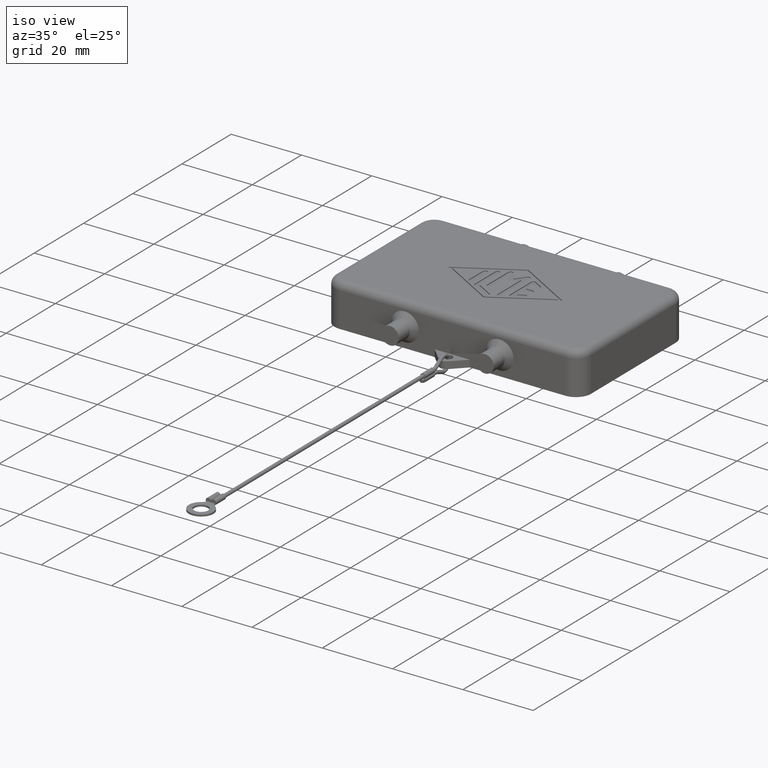
[diagram: clean part render]
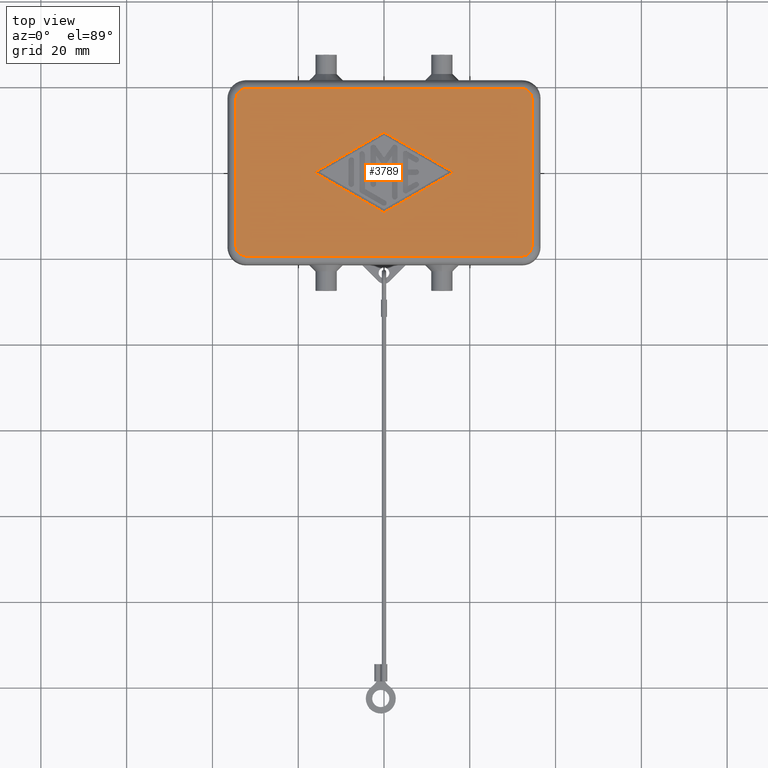
[diagram: tour spotlight — one face highlighted and labeled with its STEP entity id]
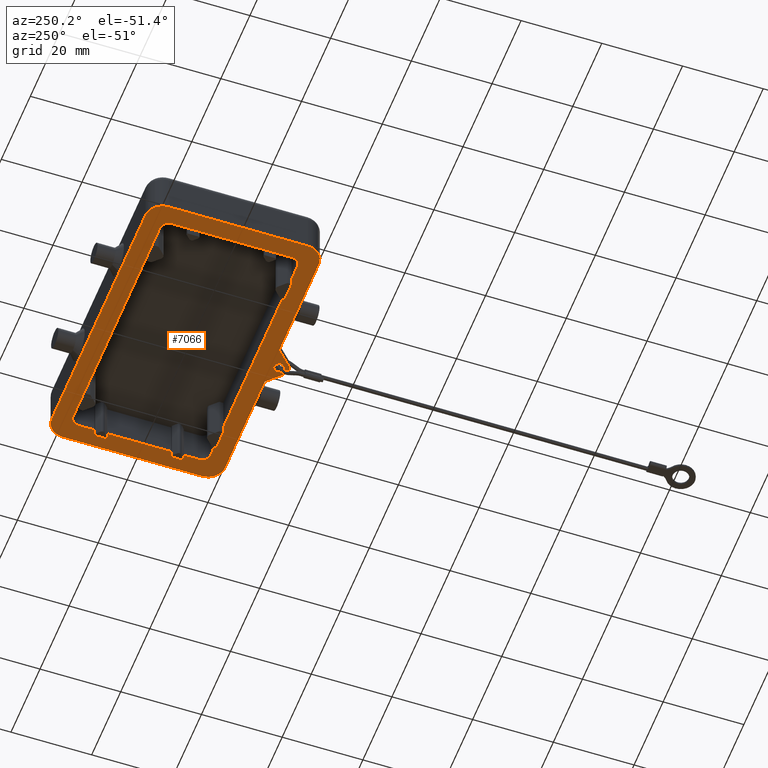
[diagram: tour spotlight — one face highlighted and labeled with its STEP entity id]
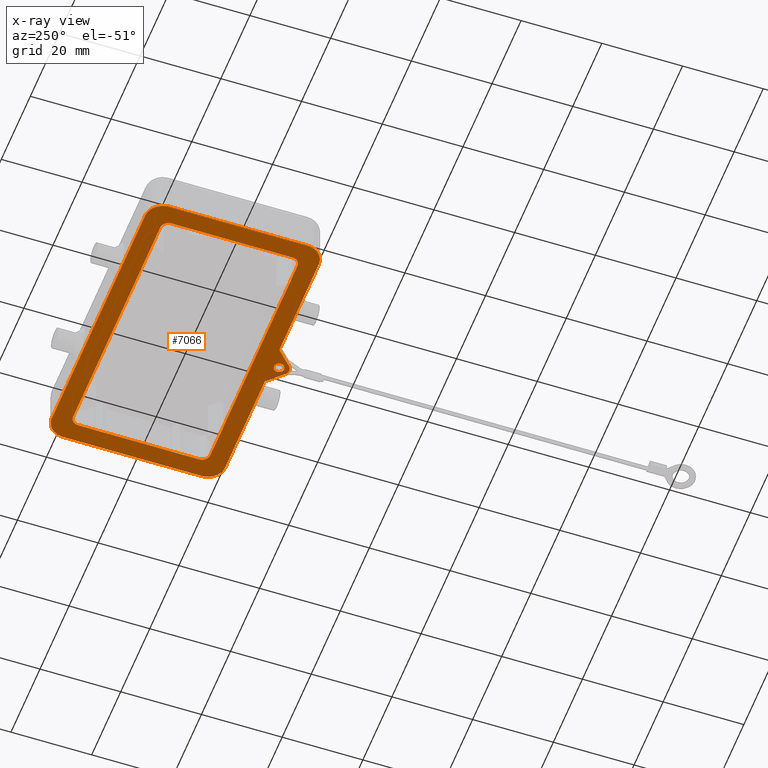
[diagram: x-ray of the same camera — body ghosted, this tour face saturated]
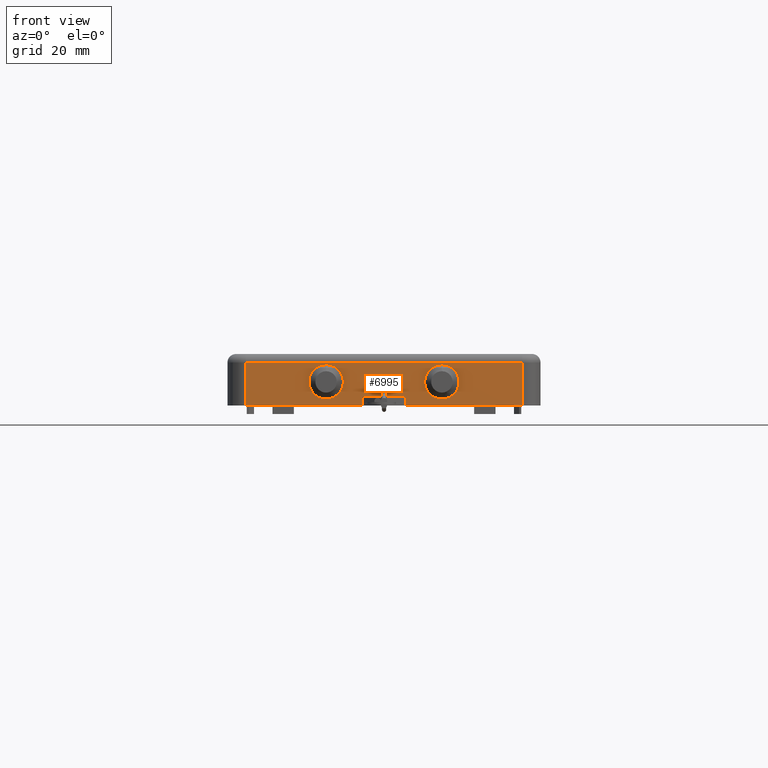
[diagram: tour spotlight — one face highlighted and labeled with its STEP entity id]
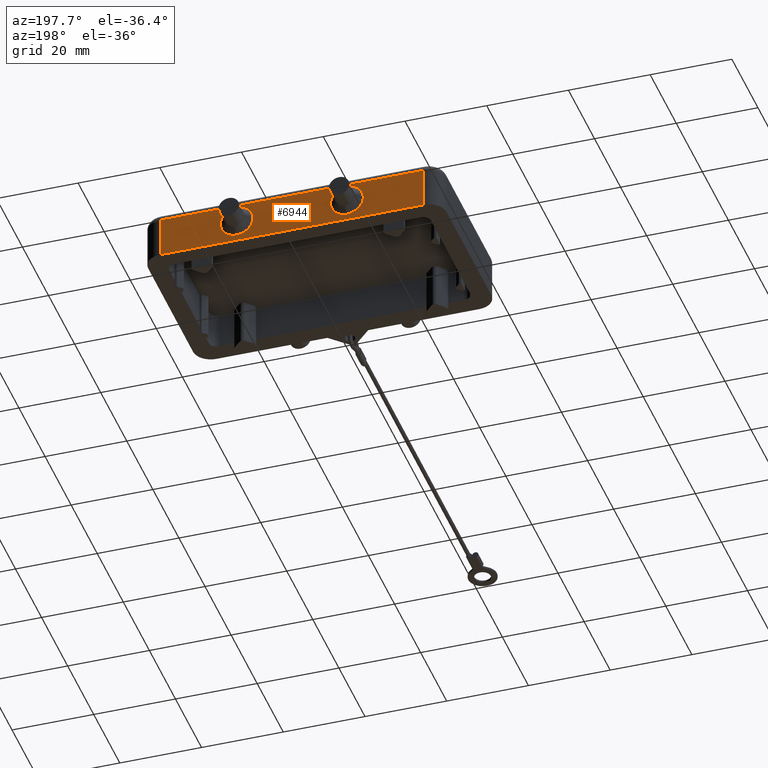
[diagram: tour spotlight — one face highlighted and labeled with its STEP entity id]
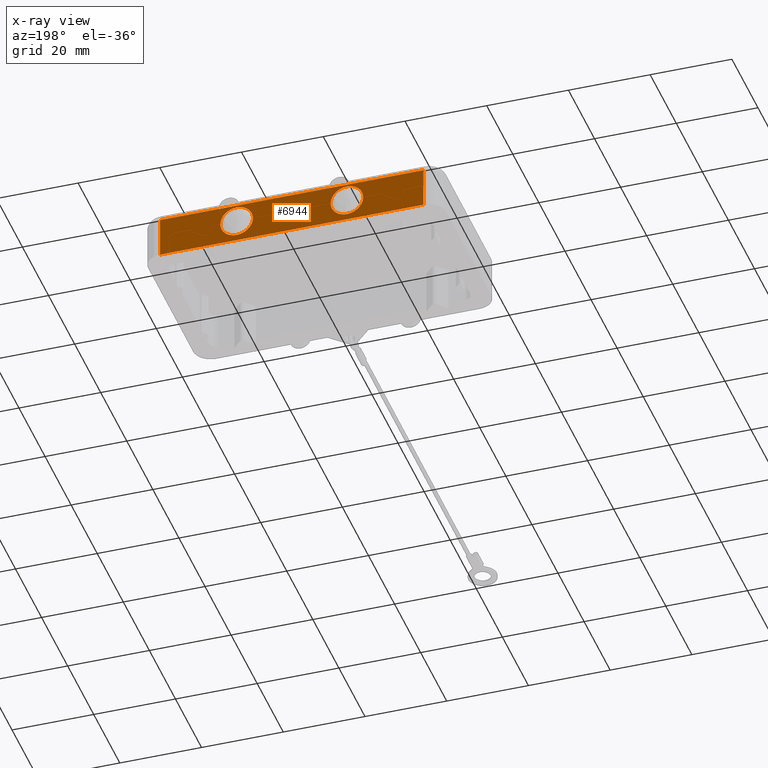
[diagram: x-ray of the same camera — body ghosted, this tour face saturated]
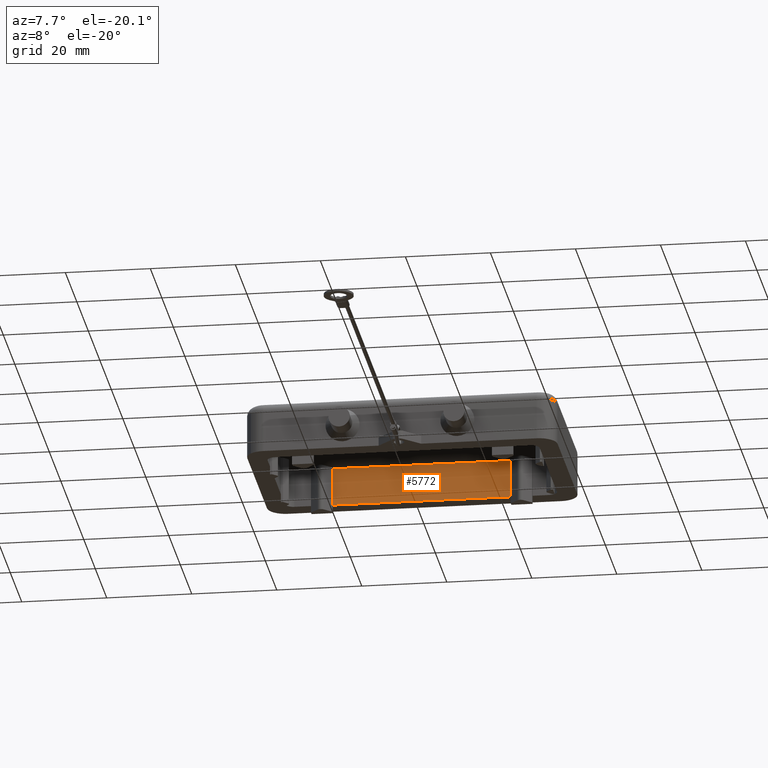
[diagram: tour spotlight — one face highlighted and labeled with its STEP entity id]
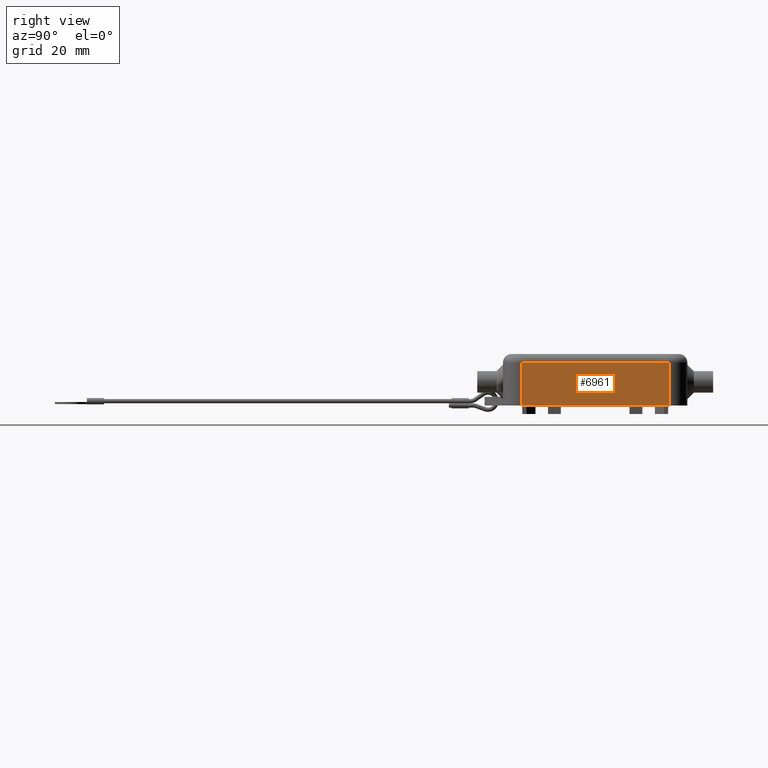
[diagram: tour spotlight — one face highlighted and labeled with its STEP entity id]
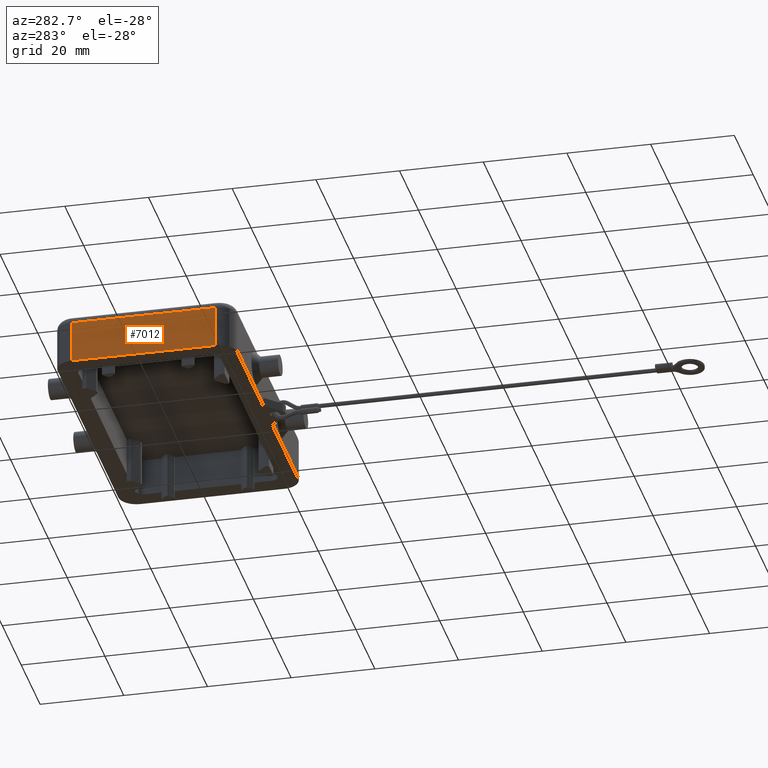
[diagram: tour spotlight — one face highlighted and labeled with its STEP entity id]
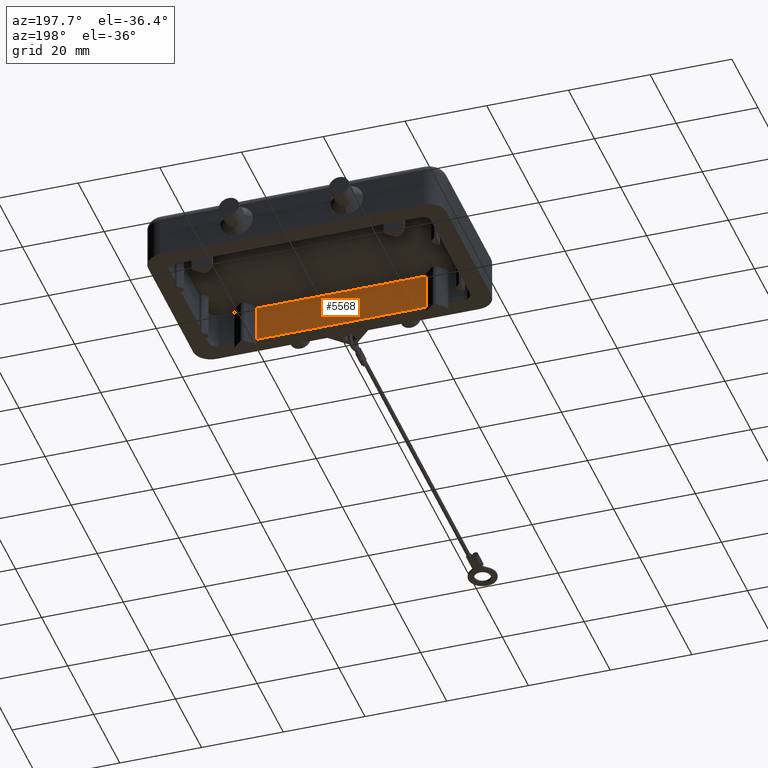
[diagram: tour spotlight — one face highlighted and labeled with its STEP entity id]
A machine part: a face-by-face anatomy tour. The part has 222 B-rep faces; the first image is the clean iso view, then the 8 largest visible faces are spotlighted one at a time (largest first), each with its STEP entity span.

Face 1 — top view, entity #3789. In plain terms, the highlighted planar face has unit normal (0, 0, 1).
Definition (entity closure, byte-faithful):
#1533=CARTESIAN_POINT('',(34.500000000000000,17.199999999999999,12.000000000000002));
#1534=VERTEX_POINT('',#1533);
#1542=CARTESIAN_POINT('',(34.500000000000000,-17.199999999999999,12.000000000000002));
#1543=VERTEX_POINT('',#1542);
#1544=CARTESIAN_POINT('',(34.500000000000000,17.199999999999999,12.000000000000002));
#1545=DIRECTION('',(0.0,-1.0,0.0));
#1546=VECTOR('',#1545,34.399999999999999);
#1547=LINE('',#1544,#1546);
#1548=EDGE_CURVE('',#1534,#1543,#1547,.T.);
#1617=CARTESIAN_POINT('',(32.200000000000003,-19.500000000000000,12.000000000000002));
#1618=VERTEX_POINT('',#1617);
#1626=CARTESIAN_POINT('',(-32.200000000000003,-19.500000000000000,12.000000000000002));
#1627=VERTEX_POINT('',#1626);
#1628=CARTESIAN_POINT('',(32.200000000000003,-19.500000000000000,12.000000000000002));
#1629=DIRECTION('',(-1.0,0.0,0.0));
#1630=VECTOR('',#1629,64.400000000000006);
#1631=LINE('',#1628,#1630);
#1632=EDGE_CURVE('',#1618,#1627,#1631,.T.);
#1701=CARTESIAN_POINT('',(-34.500000000000000,-17.199999999999999,12.000000000000002));
#1702=VERTEX_POINT('',#1701);
#1710=CARTESIAN_POINT('',(-34.500000000000000,17.199999999999999,12.000000000000002));
#1711=VERTEX_POINT('',#1710);
#1712=CARTESIAN_POINT('',(-34.500000000000000,-17.199999999999999,12.000000000000002));
#1713=DIRECTION('',(0.0,1.0,0.0));
#1714=VECTOR('',#1713,34.399999999999999);
#1715=LINE('',#1712,#1714);
#1716=EDGE_CURVE('',#1702,#1711,#1715,.T.);
#1743=CARTESIAN_POINT('',(-32.200000000000003,19.500000000000000,12.000000000000002));
#1744=VERTEX_POINT('',#1743);
#1752=CARTESIAN_POINT('',(32.200000000000003,19.500000000000000,12.000000000000002));
#1753=VERTEX_POINT('',#1752);
#1754=CARTESIAN_POINT('',(-32.200000000000003,19.500000000000000,12.000000000000002));
#1755=DIRECTION('',(1.0,0.0,0.0));
#1756=VECTOR('',#1755,64.400000000000006);
#1757=LINE('',#1754,#1756);
#1758=EDGE_CURVE('',#1744,#1753,#1757,.T.);
#2979=CARTESIAN_POINT('',(-16.249999999999996,8.660806E-017,12.000000000000002));
#2980=VERTEX_POINT('',#2979);
#2987=CARTESIAN_POINT('',(2.748489E-015,-9.375000000000002,12.000000000000002));
#2988=VERTEX_POINT('',#2987);
#2989=CARTESIAN_POINT('',(2.748489E-015,-9.375000000000002,12.000000000000002));
#2990=DIRECTION('',(-0.866185586048600,0.499722453489577,0.0));
#2991=VECTOR('',#2990,18.760413774754543);
#2992=LINE('',#2989,#2991);
#2993=EDGE_CURVE('',#2988,#2980,#2992,.T.);
#3018=CARTESIAN_POINT('',(16.250000000000004,-1.857605E-015,12.000000000000002));
#3019=VERTEX_POINT('',#3018);
#3020=CARTESIAN_POINT('',(16.250000000000004,-1.857605E-015,12.000000000000002));
#3021=DIRECTION('',(-0.866185586048600,-0.499722453489577,0.0));
#3022=VECTOR('',#3021,18.760413774754543);
#3023=LINE('',#3020,#3022);
#3024=EDGE_CURVE('',#3019,#2988,#3023,.T.);
#3049=CARTESIAN_POINT('',(-2.021297E-015,9.375000000000002,12.000000000000002));
#3050=VERTEX_POINT('',#3049);
#3051=CARTESIAN_POINT('',(-2.021297E-015,9.375000000000002,12.000000000000002));
#3052=DIRECTION('',(0.866185586048601,-0.499722453489577,0.0));
#3053=VECTOR('',#3052,18.760413774754550);
#3054=LINE('',#3051,#3053);
#3055=EDGE_CURVE('',#3050,#3019,#3054,.T.);
#3078=CARTESIAN_POINT('',(-16.249999999999996,8.660806E-017,12.000000000000002));
#3079=DIRECTION('',(0.866185586048600,0.499722453489577,0.0));
#3080=VECTOR('',#3079,18.760413774754536);
#3081=LINE('',#3078,#3080);
#3082=EDGE_CURVE('',#2980,#3050,#3081,.T.);
#3744=CARTESIAN_POINT('',(0.0,0.0,12.000000000000002));
#3745=DIRECTION('',(0.0,0.0,1.0));
#3746=DIRECTION('',(1.0,0.0,0.0));
#3747=AXIS2_PLACEMENT_3D('',#3744,#3745,#3746);
#3748=PLANE('',#3747);
#3749=CARTESIAN_POINT('',(-32.200000000000003,17.200000000000003,12.000000000000002));
#3750=DIRECTION('',(0.0,0.0,-1.000000000000000));
#3751=DIRECTION('',(-0.707106781186547,0.707106781186547,0.0));
#3752=AXIS2_PLACEMENT_3D('',#3749,#3750,#3751);
#3753=CIRCLE('',#3752,2.299999999999999);
#3754=EDGE_CURVE('',#1711,#1744,#3753,.T.);
#3755=ORIENTED_EDGE('',*,*,#3754,.F.);
#3756=ORIENTED_EDGE('',*,*,#1716,.F.);
#3757=CARTESIAN_POINT('',(-32.200000000000003,-17.199999999999999,12.000000000000002));
#3758=DIRECTION('',(0.0,0.0,-1.000000000000000));
#3759=DIRECTION('',(-0.707106781186547,-0.707106781186548,0.0));
#3760=AXIS2_PLACEMENT_3D('',#3757,#3758,#3759);
#3761=CIRCLE('',#3760,2.299999999999998);
#3762=EDGE_CURVE('',#1627,#1702,#3761,.T.);
#3763=ORIENTED_EDGE('',*,*,#3762,.F.);
#3764=ORIENTED_EDGE('',*,*,#1632,.F.);
#3765=CARTESIAN_POINT('',(32.200000000000003,-17.200000000000003,12.000000000000002));
#3766=DIRECTION('',(0.0,0.0,-1.000000000000000));
#3767=DIRECTION('',(0.707106781186547,-0.707106781186547,0.0));
#3768=AXIS2_PLACEMENT_3D('',#3765,#3766,#3767);
#3769=CIRCLE('',#3768,2.299999999999999);
#3770=EDGE_CURVE('',#1543,#1618,#3769,.T.);
#3771=ORIENTED_EDGE('',*,*,#3770,.F.);
#3772=ORIENTED_EDGE('',*,*,#1548,.F.);
#3773=CARTESIAN_POINT('',(32.200000000000003,17.199999999999999,12.000000000000002));
#3774=DIRECTION('',(0.0,0.0,-1.0));
#3775=DIRECTION('',(0.707106781186547,0.707106781186548,0.0));
#3776=AXIS2_PLACEMENT_3D('',#3773,#3774,#3775);
#3777=CIRCLE('',#3776,2.299999999999999);
#3778=EDGE_CURVE('',#1753,#1534,#3777,.T.);
#3779=ORIENTED_EDGE('',*,*,#3778,.F.);
#3780=ORIENTED_EDGE('',*,*,#1758,.F.);
#3781=EDGE_LOOP('',(#3755,#3756,#3763,#3764,#3771,#3772,#3779,#3780));
#3782=FACE_OUTER_BOUND('',#3781,.T.);
#3783=ORIENTED_EDGE('',*,*,#2993,.T.);
#3784=ORIENTED_EDGE('',*,*,#3082,.T.);
#3785=ORIENTED_EDGE('',*,*,#3055,.T.);
#3786=ORIENTED_EDGE('',*,*,#3024,.T.);
#3787=EDGE_LOOP('',(#3783,#3784,#3785,#3786));
#3788=FACE_BOUND('',#3787,.T.);
#3789=ADVANCED_FACE('',(#3782,#3788),#3748,.T.);

Face 2 — auxiliary view, entity #7066. An x-ray twin of the same camera follows (body ghosted, this face saturated) — the face is partly hidden behind the body. In plain terms, the highlighted planar face has unit normal (0, 0, 1).
Definition (entity closure, byte-faithful):
#1481=CARTESIAN_POINT('',(35.240559159102155,20.240559159102155,0.0));
#1482=VERTEX_POINT('',#1481);
#1491=CARTESIAN_POINT('',(32.200000000000003,21.500000000000000,0.0));
#1492=VERTEX_POINT('',#1491);
#1493=CARTESIAN_POINT('',(32.200000000000003,17.199999999999999,0.0));
#1494=DIRECTION('',(0.0,0.0,1.000000000000000));
#1495=DIRECTION('',(0.707106781186547,0.707106781186548,0.0));
#1496=AXIS2_PLACEMENT_3D('',#1493,#1494,#1495);
#1497=CIRCLE('',#1496,4.299999999999999);
#1498=EDGE_CURVE('',#1482,#1492,#1497,.T.);
#1565=CARTESIAN_POINT('',(35.240559159102162,-20.240559159102155,0.0));
#1566=VERTEX_POINT('',#1565);
#1575=CARTESIAN_POINT('',(36.500000000000000,-17.200000000000003,0.0));
#1576=VERTEX_POINT('',#1575);
#1577=CARTESIAN_POINT('',(32.200000000000003,-17.200000000000003,0.0));
#1578=DIRECTION('',(0.0,0.0,1.000000000000000));
#1579=DIRECTION('',(0.707106781186548,-0.707106781186547,0.0));
#1580=AXIS2_PLACEMENT_3D('',#1577,#1578,#1579);
#1581=CIRCLE('',#1580,4.299999999999999);
#1582=EDGE_CURVE('',#1566,#1576,#1581,.T.);
#1649=CARTESIAN_POINT('',(-35.240559159102155,-20.240559159102155,0.0));
#1650=VERTEX_POINT('',#1649);
#1659=CARTESIAN_POINT('',(-32.200000000000003,-21.500000000000000,0.0));
#1660=VERTEX_POINT('',#1659);
#1661=CARTESIAN_POINT('',(-32.200000000000003,-17.199999999999999,0.0));
#1662=DIRECTION('',(0.0,0.0,1.000000000000000));
#1663=DIRECTION('',(-0.707106781186547,-0.707106781186548,0.0));
#1664=AXIS2_PLACEMENT_3D('',#1661,#1662,#1663);
#1665=CIRCLE('',#1664,4.299999999999999);
#1666=EDGE_CURVE('',#1650,#1660,#1665,.T.);
#1775=CARTESIAN_POINT('',(-35.240559159102162,20.240559159102155,0.0));
#1776=VERTEX_POINT('',#1775);
#1785=CARTESIAN_POINT('',(-36.500000000000000,17.200000000000003,0.0));
#1786=VERTEX_POINT('',#1785);
#1787=CARTESIAN_POINT('',(-32.200000000000003,17.200000000000003,0.0));
#1788=DIRECTION('',(0.0,0.0,1.000000000000000));
#1789=DIRECTION('',(-0.707106781186548,0.707106781186547,0.0));
#1790=AXIS2_PLACEMENT_3D('',#1787,#1788,#1789);
#1791=CIRCLE('',#1790,4.299999999999999);
#1792=EDGE_CURVE('',#1776,#1786,#1791,.T.);
#1819=CARTESIAN_POINT('',(-1.250000000000000,-23.249999999999996,0.0));
#1820=VERTEX_POINT('',#1819);
#1836=CARTESIAN_POINT('',(1.250000000000000,-23.249999999999996,0.0));
#1837=VERTEX_POINT('',#1836);
#1844=CARTESIAN_POINT('',(0.0,-23.249999999999996,0.0));
#1845=DIRECTION('',(0.0,0.0,1.0));
#1846=DIRECTION('',(-1.0,0.0,0.0));
#1847=AXIS2_PLACEMENT_3D('',#1844,#1845,#1846);
#1848=CIRCLE('',#1847,1.250000000000000);
#1849=EDGE_CURVE('',#1820,#1837,#1848,.T.);
#3937=CARTESIAN_POINT('',(-32.000000000000007,7.999999999999996,0.0));
#3938=VERTEX_POINT('',#3937);
#3959=CARTESIAN_POINT('',(-32.0,10.999999999999996,0.0));
#3960=VERTEX_POINT('',#3959);
#3961=CARTESIAN_POINT('',(-32.0,10.999999999999996,0.0));
#3962=DIRECTION('',(0.0,-1.0,0.0));
#3963=VECTOR('',#3962,3.0);
#3964=LINE('',#3961,#3963);
#3965=EDGE_CURVE('',#3960,#3938,#3964,.T.);
#4043=CARTESIAN_POINT('',(-32.0,-7.999999999999998,0.0));
#4044=VERTEX_POINT('',#4043);
#4051=CARTESIAN_POINT('',(-32.000000000000007,7.999999999999996,0.0));
#4052=DIRECTION('',(0.0,-1.0,0.0));
#4053=VECTOR('',#4052,15.999999999999995);
#4054=LINE('',#4051,#4053);
#4055=EDGE_CURVE('',#3938,#4044,#4054,.T.);
#4066=CARTESIAN_POINT('',(-32.000000000000014,14.999999999999996,0.0));
#4067=VERTEX_POINT('',#4066);
#4068=CARTESIAN_POINT('',(-32.000000000000014,14.999999999999996,0.0));
#4069=DIRECTION('',(0.0,-1.0,0.0));
#4070=VECTOR('',#4069,4.0);
#4071=LINE('',#4068,#4070);
#4072=EDGE_CURVE('',#4067,#3960,#4071,.T.);
#4096=CARTESIAN_POINT('',(-32.0,-10.999999999999998,0.0));
#4097=VERTEX_POINT('',#4096);
#4098=CARTESIAN_POINT('',(-32.0,-7.999999999999998,0.0));
#4099=DIRECTION('',(0.0,-1.0,0.0));
#4100=VECTOR('',#4099,3.0);
#4101=LINE('',#4098,#4100);
#4102=EDGE_CURVE('',#4044,#4097,#4101,.T.);
#4335=CARTESIAN_POINT('',(-32.0,-15.0,0.0));
#4336=VERTEX_POINT('',#4335);
#4343=CARTESIAN_POINT('',(-32.0,-10.999999999999998,0.0));
#4344=DIRECTION('',(0.0,-1.0,0.0));
#4345=VECTOR('',#4344,4.000000000000002);
#4346=LINE('',#4343,#4345);
#4347=EDGE_CURVE('',#4097,#4336,#4346,.T.);
#4730=CARTESIAN_POINT('',(32.0,7.999999999999996,0.0));
#4731=VERTEX_POINT('',#4730);
#4732=CARTESIAN_POINT('',(32.0,10.999999999999996,0.0));
#4733=VERTEX_POINT('',#4732);
#4734=CARTESIAN_POINT('',(32.0,7.999999999999996,0.0));
#4735=DIRECTION('',(0.0,1.0,0.0));
#4736=VECTOR('',#4735,3.0);
#4737=LINE('',#4734,#4736);
#4738=EDGE_CURVE('',#4731,#4733,#4737,.T.);
#4911=CARTESIAN_POINT('',(32.0,-7.999999999999998,0.0));
#4912=VERTEX_POINT('',#4911);
#4913=CARTESIAN_POINT('',(32.0,-7.999999999999998,0.0));
#4914=DIRECTION('',(0.0,1.0,0.0));
#4915=VECTOR('',#4914,15.999999999999995);
#4916=LINE('',#4913,#4915);
#4917=EDGE_CURVE('',#4912,#4731,#4916,.T.);
#5022=CARTESIAN_POINT('',(32.000000000000007,-10.999999999999998,0.0));
#5023=VERTEX_POINT('',#5022);
#5046=CARTESIAN_POINT('',(32.000000000000007,-10.999999999999998,0.0));
#5047=DIRECTION('',(0.0,1.0,0.0));
#5048=VECTOR('',#5047,3.0);
#5049=LINE('',#5046,#5048);
#5050=EDGE_CURVE('',#5023,#4912,#5049,.T.);
#5109=CARTESIAN_POINT('',(31.999999999999996,15.000000000000004,0.0));
#5110=VERTEX_POINT('',#5109);
#5117=CARTESIAN_POINT('',(32.0,10.999999999999996,0.0));
#5118=DIRECTION('',(0.0,1.0,0.0));
#5119=VECTOR('',#5118,4.000000000000007);
#5120=LINE('',#5117,#5119);
#5121=EDGE_CURVE('',#4733,#5110,#5120,.T.);
#5131=CARTESIAN_POINT('',(-26.000000000000007,-16.999999999999996,0.0));
#5132=VERTEX_POINT('',#5131);
#5133=CARTESIAN_POINT('',(-21.000000000000007,-16.999999999999996,0.0));
#5134=VERTEX_POINT('',#5133);
#5135=CARTESIAN_POINT('',(-26.000000000000007,-16.999999999999996,0.0));
#5136=DIRECTION('',(1.0,0.0,0.0));
#5137=VECTOR('',#5136,5.0);
#5138=LINE('',#5135,#5137);
#5139=EDGE_CURVE('',#5132,#5134,#5138,.T.);
#5333=CARTESIAN_POINT('',(-29.999999999999996,-16.999999999999996,0.0));
#5334=VERTEX_POINT('',#5333);
#5335=CARTESIAN_POINT('',(-29.999999999999996,-16.999999999999996,0.0));
#5336=DIRECTION('',(1.0,0.0,0.0));
#5337=VECTOR('',#5336,3.999999999999989);
#5338=LINE('',#5335,#5337);
#5339=EDGE_CURVE('',#5334,#5132,#5338,.T.);
#5356=CARTESIAN_POINT('',(21.000000000000007,-16.999999999999996,0.0));
#5357=VERTEX_POINT('',#5356);
#5358=CARTESIAN_POINT('',(26.000000000000007,-16.999999999999996,0.0));
#5359=VERTEX_POINT('',#5358);
#5360=CARTESIAN_POINT('',(21.000000000000007,-16.999999999999996,0.0));
#5361=DIRECTION('',(1.0,0.0,0.0));
#5362=VECTOR('',#5361,5.0);
#5363=LINE('',#5360,#5362);
#5364=EDGE_CURVE('',#5357,#5359,#5363,.T.);
#5560=CARTESIAN_POINT('',(-21.000000000000007,-16.999999999999996,0.0));
#5561=DIRECTION('',(1.0,0.0,0.0));
#5562=VECTOR('',#5561,42.000000000000014);
#5563=LINE('',#5560,#5562);
#5564=EDGE_CURVE('',#5134,#5357,#5563,.T.);
#5574=CARTESIAN_POINT('',(-21.000000000000007,16.999999999999996,0.0));
#5575=VERTEX_POINT('',#5574);
#5576=CARTESIAN_POINT('',(-26.000000000000007,16.999999999999996,0.0));
#5577=VERTEX_POINT('',#5576);
#5578=CARTESIAN_POINT('',(-21.000000000000007,16.999999999999996,0.0));
#5579=DIRECTION('',(-1.0,0.0,0.0));
#5580=VECTOR('',#5579,5.0);
#5581=LINE('',#5578,#5580);
#5582=EDGE_CURVE('',#5575,#5577,#5581,.T.);
#5755=CARTESIAN_POINT('',(21.000000000000007,16.999999999999996,0.0));
#5756=VERTEX_POINT('',#5755);
#5757=CARTESIAN_POINT('',(21.000000000000007,16.999999999999996,0.0));
#5758=DIRECTION('',(-1.0,0.0,0.0));
#5759=VECTOR('',#5758,42.000000000000014);
#5760=LINE('',#5757,#5759);
#5761=EDGE_CURVE('',#5756,#5575,#5760,.T.);
#5778=CARTESIAN_POINT('',(26.000000000000007,16.999999999999996,0.0));
#5779=VERTEX_POINT('',#5778);
#5780=CARTESIAN_POINT('',(26.000000000000007,16.999999999999996,0.0));
#5781=DIRECTION('',(-1.0,0.0,0.0));
#5782=VECTOR('',#5781,5.0);
#5783=LINE('',#5780,#5782);
#5784=EDGE_CURVE('',#5779,#5756,#5783,.T.);
#5952=CARTESIAN_POINT('',(29.999999999999996,17.000000000000007,0.0));
#5953=VERTEX_POINT('',#5952);
#5954=CARTESIAN_POINT('',(29.999999999999996,17.000000000000007,0.0));
#5955=DIRECTION('',(-1.0,0.0,0.0));
#5956=VECTOR('',#5955,3.999999999999989);
#5957=LINE('',#5954,#5956);
#5958=EDGE_CURVE('',#5953,#5779,#5957,.T.);
#6268=CARTESIAN_POINT('',(0.0,-23.249999999999996,0.0));
#6269=DIRECTION('',(0.0,0.0,1.0));
#6270=DIRECTION('',(-1.0,0.0,0.0));
#6271=AXIS2_PLACEMENT_3D('',#6268,#6269,#6270);
#6272=CIRCLE('',#6271,1.250000000000000);
#6273=EDGE_CURVE('',#1837,#1820,#6272,.T.);
#6302=CARTESIAN_POINT('',(-1.237436867076460,-25.262563132923546,0.0));
#6303=VERTEX_POINT('',#6302);
#6310=CARTESIAN_POINT('',(1.237436867076460,-25.262563132923546,0.0));
#6311=VERTEX_POINT('',#6310);
#6312=CARTESIAN_POINT('',(0.0,-24.025126265847085,0.0));
#6313=DIRECTION('',(0.0,0.0,-1.000000000000000));
#6314=DIRECTION('',(0.707106781186546,0.707106781186549,0.0));
#6315=AXIS2_PLACEMENT_3D('',#6312,#6313,#6314);
#6316=CIRCLE('',#6315,1.750000000000012);
#6317=EDGE_CURVE('',#6311,#6303,#6316,.T.);
#6341=CARTESIAN_POINT('',(-5.0,-21.500000000000000,0.0));
#6342=VERTEX_POINT('',#6341);
#6349=CARTESIAN_POINT('',(-1.237436867076460,-25.262563132923546,0.0));
#6350=DIRECTION('',(-0.707106781186547,0.707106781186548,0.0));
#6351=VECTOR('',#6350,5.321067811865476);
#6352=LINE('',#6349,#6351);
#6353=EDGE_CURVE('',#6303,#6342,#6352,.T.);
#6373=CARTESIAN_POINT('',(5.0,-21.500000000000000,0.0));
#6374=VERTEX_POINT('',#6373);
#6375=CARTESIAN_POINT('',(5.0,-21.500000000000000,0.0));
#6376=DIRECTION('',(-0.707106781186547,-0.707106781186548,0.0));
#6377=VECTOR('',#6376,5.321067811865476);
#6378=LINE('',#6375,#6377);
#6379=EDGE_CURVE('',#6374,#6311,#6378,.T.);
#6418=CARTESIAN_POINT('',(-30.000000000000004,16.999999999999993,0.0));
#6419=VERTEX_POINT('',#6418);
#6426=CARTESIAN_POINT('',(-26.000000000000007,16.999999999999996,0.0));
#6427=DIRECTION('',(-1.0,0.0,0.0));
#6428=VECTOR('',#6427,3.999999999999996);
#6429=LINE('',#6426,#6428);
#6430=EDGE_CURVE('',#5577,#6419,#6429,.T.);
#6442=CARTESIAN_POINT('',(29.999999999999996,15.000000000000004,0.0));
#6443=DIRECTION('',(0.0,0.0,1.0));
#6444=DIRECTION('',(1.0,0.0,0.0));
#6445=AXIS2_PLACEMENT_3D('',#6442,#6443,#6444);
#6446=CIRCLE('',#6445,2.000000000000002);
#6447=EDGE_CURVE('',#5110,#5953,#6446,.T.);
#6459=CARTESIAN_POINT('',(32.000000000000007,-15.0,0.0));
#6460=VERTEX_POINT('',#6459);
#6461=CARTESIAN_POINT('',(32.000000000000007,-15.0,0.0));
#6462=DIRECTION('',(0.0,1.0,0.0));
#6463=VECTOR('',#6462,4.000000000000002);
#6464=LINE('',#6461,#6463);
#6465=EDGE_CURVE('',#6460,#5023,#6464,.T.);
#6484=CARTESIAN_POINT('',(30.000000000000004,-16.999999999999996,0.0));
#6485=VERTEX_POINT('',#6484);
#6486=CARTESIAN_POINT('',(30.000000000000004,-15.0,0.0));
#6487=DIRECTION('',(0.0,0.0,1.0));
#6488=DIRECTION('',(0.0,-1.0,0.0));
#6489=AXIS2_PLACEMENT_3D('',#6486,#6487,#6488);
#6490=CIRCLE('',#6489,2.000000000000004);
#6491=EDGE_CURVE('',#6485,#6460,#6490,.T.);
#6510=CARTESIAN_POINT('',(26.000000000000007,-16.999999999999996,0.0));
#6511=DIRECTION('',(1.0,0.0,0.0));
#6512=VECTOR('',#6511,3.999999999999996);
#6513=LINE('',#6510,#6512);
#6514=EDGE_CURVE('',#5359,#6485,#6513,.T.);
#6526=CARTESIAN_POINT('',(-29.999999999999996,-15.0,0.0));
#6527=DIRECTION('',(0.0,0.0,1.0));
#6528=DIRECTION('',(-1.0,0.0,0.0));
#6529=AXIS2_PLACEMENT_3D('',#6526,#6527,#6528);
#6530=CIRCLE('',#6529,2.000000000000001);
#6531=EDGE_CURVE('',#4336,#5334,#6530,.T.);
#6544=CARTESIAN_POINT('',(-30.000000000000004,14.999999999999996,0.0));
#6545=DIRECTION('',(0.0,0.0,1.0));
#6546=DIRECTION('',(0.0,1.0,0.0));
#6547=AXIS2_PLACEMENT_3D('',#6544,#6545,#6546);
#6548=CIRCLE('',#6547,2.000000000000002);
#6549=EDGE_CURVE('',#6419,#4067,#6548,.T.);
#6597=CARTESIAN_POINT('',(-32.200000000000003,21.500000000000000,0.0));
#6598=VERTEX_POINT('',#6597);
#6605=CARTESIAN_POINT('',(-32.200000000000003,17.200000000000003,0.0));
#6606=DIRECTION('',(0.0,0.0,1.000000000000000));
#6607=DIRECTION('',(-0.707106781186548,0.707106781186547,0.0));
#6608=AXIS2_PLACEMENT_3D('',#6605,#6606,#6607);
#6609=CIRCLE('',#6608,4.299999999999999);
#6610=EDGE_CURVE('',#6598,#1776,#6609,.T.);
#6754=CARTESIAN_POINT('',(-36.500000000000000,-17.199999999999999,0.0));
#6755=VERTEX_POINT('',#6754);
#6762=CARTESIAN_POINT('',(-32.200000000000003,-17.199999999999999,0.0));
#6763=DIRECTION('',(0.0,0.0,1.000000000000000));
#6764=DIRECTION('',(-0.707106781186547,-0.707106781186548,0.0));
#6765=AXIS2_PLACEMENT_3D('',#6762,#6763,#6764);
#6766=CIRCLE('',#6765,4.299999999999999);
#6767=EDGE_CURVE('',#6755,#1650,#6766,.T.);
#6831=CARTESIAN_POINT('',(32.200000000000003,-21.500000000000000,0.0));
#6832=VERTEX_POINT('',#6831);
#6839=CARTESIAN_POINT('',(32.200000000000003,-17.200000000000003,0.0));
#6840=DIRECTION('',(0.0,0.0,1.000000000000000));
#6841=DIRECTION('',(0.707106781186548,-0.707106781186547,0.0));
#6842=AXIS2_PLACEMENT_3D('',#6839,#6840,#6841);
#6843=CIRCLE('',#6842,4.299999999999999);
#6844=EDGE_CURVE('',#6832,#1566,#6843,.T.);
#6902=CARTESIAN_POINT('',(36.500000000000000,17.199999999999999,0.0));
#6903=VERTEX_POINT('',#6902);
#6910=CARTESIAN_POINT('',(32.200000000000003,17.199999999999999,0.0));
#6911=DIRECTION('',(0.0,0.0,1.000000000000000));
#6912=DIRECTION('',(0.707106781186547,0.707106781186548,0.0));
#6913=AXIS2_PLACEMENT_3D('',#6910,#6911,#6912);
#6914=CIRCLE('',#6913,4.299999999999999);
#6915=EDGE_CURVE('',#6903,#1482,#6914,.T.);
#6928=CARTESIAN_POINT('',(-32.200000000000003,21.500000000000000,0.0));
#6929=DIRECTION('',(1.0,0.0,0.0));
#6930=VECTOR('',#6929,64.400000000000006);
#6931=LINE('',#6928,#6930);
#6932=EDGE_CURVE('',#6598,#1492,#6931,.T.);
#6951=CARTESIAN_POINT('',(36.500000000000000,17.199999999999999,0.0));
#6952=DIRECTION('',(0.0,-1.0,0.0));
#6953=VECTOR('',#6952,34.400000000000006);
#6954=LINE('',#6951,#6953);
#6955=EDGE_CURVE('',#6903,#1576,#6954,.T.);
#6968=CARTESIAN_POINT('',(32.200000000000003,-21.500000000000000,0.0));
#6969=DIRECTION('',(-1.0,0.0,0.0));
#6970=VECTOR('',#6969,27.200000000000003);
#6971=LINE('',#6968,#6970);
#6972=EDGE_CURVE('',#6832,#6374,#6971,.T.);
#6977=CARTESIAN_POINT('',(-5.0,-21.500000000000000,0.0));
#6978=DIRECTION('',(-1.0,0.0,0.0));
#6979=VECTOR('',#6978,27.200000000000003);
#6980=LINE('',#6977,#6979);
#6981=EDGE_CURVE('',#6342,#1660,#6980,.T.);
#7002=CARTESIAN_POINT('',(-36.500000000000000,-17.199999999999999,0.0));
#7003=DIRECTION('',(0.0,1.0,0.0));
#7004=VECTOR('',#7003,34.400000000000006);
#7005=LINE('',#7002,#7004);
#7006=EDGE_CURVE('',#6755,#1786,#7005,.T.);
#7013=CARTESIAN_POINT('',(0.0,0.0,0.0));
#7014=DIRECTION('',(0.0,0.0,1.0));
#7015=DIRECTION('',(1.0,0.0,0.0));
#7016=AXIS2_PLACEMENT_3D('',#7013,#7014,#7015);
#7017=PLANE('',#7016);
#7018=ORIENTED_EDGE('',*,*,#6610,.F.);
#7019=ORIENTED_EDGE('',*,*,#6932,.T.);
#7020=ORIENTED_EDGE('',*,*,#1498,.F.);
#7021=ORIENTED_EDGE('',*,*,#6915,.F.);
#7022=ORIENTED_EDGE('',*,*,#6955,.T.);
#7023=ORIENTED_EDGE('',*,*,#1582,.F.);
#7024=ORIENTED_EDGE('',*,*,#6844,.F.);
#7025=ORIENTED_EDGE('',*,*,#6972,.T.);
#7026=ORIENTED_EDGE('',*,*,#6379,.T.);
#7027=ORIENTED_EDGE('',*,*,#6317,.T.);
#7028=ORIENTED_EDGE('',*,*,#6353,.T.);
#7029=ORIENTED_EDGE('',*,*,#6981,.T.);
#7030=ORIENTED_EDGE('',*,*,#1666,.F.);
#7031=ORIENTED_EDGE('',*,*,#6767,.F.);
#7032=ORIENTED_EDGE('',*,*,#7006,.T.);
#7033=ORIENTED_EDGE('',*,*,#1792,.F.);
#7034=EDGE_LOOP('',(#7018,#7019,#7020,#7021,#7022,#7023,#7024,#7025,#7026,#7027,#7028,#7029,#7030,#7031,#7032,#7033));
#7035=FACE_OUTER_BOUND('',#7034,.T.);
#7036=ORIENTED_EDGE('',*,*,#6273,.T.);
#7037=ORIENTED_EDGE('',*,*,#1849,.T.);
#7038=EDGE_LOOP('',(#7036,#7037));
#7039=FACE_BOUND('',#7038,.T.);
#7040=ORIENTED_EDGE('',*,*,#5958,.T.);
#7041=ORIENTED_EDGE('',*,*,#5784,.T.);
#7042=ORIENTED_EDGE('',*,*,#5761,.T.);
#7043=ORIENTED_EDGE('',*,*,#5582,.T.);
#7044=ORIENTED_EDGE('',*,*,#6430,.T.);
#7045=ORIENTED_EDGE('',*,*,#6549,.T.);
#7046=ORIENTED_EDGE('',*,*,#4072,.T.);
#7047=ORIENTED_EDGE('',*,*,#3965,.T.);
#7048=ORIENTED_EDGE('',*,*,#4055,.T.);
#7049=ORIENTED_EDGE('',*,*,#4102,.T.);
#7050=ORIENTED_EDGE('',*,*,#4347,.T.);
#7051=ORIENTED_EDGE('',*,*,#6531,.T.);
#7052=ORIENTED_EDGE('',*,*,#5339,.T.);
#7053=ORIENTED_EDGE('',*,*,#5139,.T.);
#7054=ORIENTED_EDGE('',*,*,#5564,.T.);
#7055=ORIENTED_EDGE('',*,*,#5364,.T.);
#7056=ORIENTED_EDGE('',*,*,#6514,.T.);
#7057=ORIENTED_EDGE('',*,*,#6491,.T.);
#7058=ORIENTED_EDGE('',*,*,#6465,.T.);
#7059=ORIENTED_EDGE('',*,*,#5050,.T.);
#7060=ORIENTED_EDGE('',*,*,#4917,.T.);
#7061=ORIENTED_EDGE('',*,*,#4738,.T.);
#7062=ORIENTED_EDGE('',*,*,#5121,.T.);
#7063=ORIENTED_EDGE('',*,*,#6447,.T.);
#7064=EDGE_LOOP('',(#7040,#7041,#7042,#7043,#7044,#7045,#7046,#7047,#7048,#7049,#7050,#7051,#7052,#7053,#7054,#7055,#7056,#7057,#7058,#7059,#7060,#7061,#7062,#7063));
#7065=FACE_BOUND('',#7064,.T.);
#7066=ADVANCED_FACE('',(#7035,#7039,#7065),#7017,.F.);

Face 3 — front view, entity #6995. In plain terms, the highlighted planar face has unit normal (0, -1, 0).
Definition (entity closure, byte-faithful):
#1659=CARTESIAN_POINT('',(-32.200000000000003,-21.500000000000000,0.0));
#1660=VERTEX_POINT('',#1659);
#1668=CARTESIAN_POINT('',(-32.200000000000003,-21.500000000000000,10.000000000000002));
#1669=VERTEX_POINT('',#1668);
#1670=CARTESIAN_POINT('',(-32.200000000000003,-21.500000000000000,0.0));
#1671=DIRECTION('',(0.0,0.0,1.0));
#1672=VECTOR('',#1671,10.000000000000002);
#1673=LINE('',#1670,#1672);
#1674=EDGE_CURVE('',#1660,#1669,#1673,.T.);
#1861=CARTESIAN_POINT('',(13.500000000000000,-21.499999999999993,9.499999999999996));
#1862=VERTEX_POINT('',#1861);
#1878=CARTESIAN_POINT('',(13.500000000000000,-21.500000000000000,1.500000000000007));
#1879=VERTEX_POINT('',#1878);
#1886=CARTESIAN_POINT('',(13.500000000000000,-21.500000000000000,5.499999999999999));
#1887=DIRECTION('',(0.0,1.0,0.0));
#1888=DIRECTION('',(0.0,0.0,1.0));
#1889=AXIS2_PLACEMENT_3D('',#1886,#1887,#1888);
#1890=CIRCLE('',#1889,3.999999999999992);
#1891=EDGE_CURVE('',#1862,#1879,#1890,.T.);
#1956=CARTESIAN_POINT('',(-13.500000000000000,-21.499999999999993,9.499999999999996));
#1957=VERTEX_POINT('',#1956);
#1973=CARTESIAN_POINT('',(-13.500000000000000,-21.500000000000000,1.500000000000007));
#1974=VERTEX_POINT('',#1973);
#1981=CARTESIAN_POINT('',(-13.500000000000000,-21.500000000000000,5.499999999999999));
#1982=DIRECTION('',(0.0,1.0,0.0));
#1983=DIRECTION('',(0.0,0.0,1.0));
#1984=AXIS2_PLACEMENT_3D('',#1981,#1982,#1983);
#1985=CIRCLE('',#1984,3.999999999999992);
#1986=EDGE_CURVE('',#1957,#1974,#1985,.T.);
#6198=CARTESIAN_POINT('',(-13.500000000000000,-21.500000000000000,5.499999999999999));
#6199=DIRECTION('',(0.0,1.0,0.0));
#6200=DIRECTION('',(0.0,0.0,1.0));
#6201=AXIS2_PLACEMENT_3D('',#6198,#6199,#6200);
#6202=CIRCLE('',#6201,3.999999999999992);
#6203=EDGE_CURVE('',#1974,#1957,#6202,.T.);
#6250=CARTESIAN_POINT('',(13.500000000000000,-21.500000000000000,5.499999999999999));
#6251=DIRECTION('',(0.0,1.0,0.0));
#6252=DIRECTION('',(0.0,0.0,1.0));
#6253=AXIS2_PLACEMENT_3D('',#6250,#6251,#6252);
#6254=CIRCLE('',#6253,3.999999999999992);
#6255=EDGE_CURVE('',#1879,#1862,#6254,.T.);
#6333=CARTESIAN_POINT('',(-5.0,-21.500000000000000,2.0));
#6334=VERTEX_POINT('',#6333);
#6341=CARTESIAN_POINT('',(-5.0,-21.500000000000000,0.0));
#6342=VERTEX_POINT('',#6341);
#6343=CARTESIAN_POINT('',(-5.0,-21.500000000000000,0.0));
#6344=DIRECTION('',(0.0,0.0,1.0));
#6345=VECTOR('',#6344,2.0);
#6346=LINE('',#6343,#6345);
#6347=EDGE_CURVE('',#6342,#6334,#6346,.T.);
#6364=CARTESIAN_POINT('',(5.0,-21.500000000000000,2.0));
#6365=VERTEX_POINT('',#6364);
#6373=CARTESIAN_POINT('',(5.0,-21.500000000000000,0.0));
#6374=VERTEX_POINT('',#6373);
#6381=CARTESIAN_POINT('',(5.0,-21.500000000000000,2.0));
#6382=DIRECTION('',(0.0,0.0,-1.0));
#6383=VECTOR('',#6382,2.0);
#6384=LINE('',#6381,#6383);
#6385=EDGE_CURVE('',#6365,#6374,#6384,.T.);
#6397=CARTESIAN_POINT('',(-5.0,-21.500000000000000,2.0));
#6398=DIRECTION('',(1.0,0.0,0.0));
#6399=VECTOR('',#6398,10.0);
#6400=LINE('',#6397,#6399);
#6401=EDGE_CURVE('',#6334,#6365,#6400,.T.);
#6779=CARTESIAN_POINT('',(32.200000000000003,-21.500000000000004,10.000000000000002));
#6780=VERTEX_POINT('',#6779);
#6781=CARTESIAN_POINT('',(-32.200000000000003,-21.500000000000000,10.000000000000002));
#6782=DIRECTION('',(1.0,0.0,0.0));
#6783=VECTOR('',#6782,64.400000000000006);
#6784=LINE('',#6781,#6783);
#6785=EDGE_CURVE('',#1669,#6780,#6784,.T.);
#6831=CARTESIAN_POINT('',(32.200000000000003,-21.500000000000000,0.0));
#6832=VERTEX_POINT('',#6831);
#6833=CARTESIAN_POINT('',(32.200000000000003,-21.500000000000004,10.000000000000002));
#6834=DIRECTION('',(0.0,0.0,-1.0));
#6835=VECTOR('',#6834,10.000000000000002);
#6836=LINE('',#6833,#6835);
#6837=EDGE_CURVE('',#6780,#6832,#6836,.T.);
#6962=CARTESIAN_POINT('',(36.500000000000000,-21.500000000000000,0.0));
#6963=DIRECTION('',(0.0,-1.0,0.0));
#6964=DIRECTION('',(0.0,0.0,-1.0));
#6965=AXIS2_PLACEMENT_3D('',#6962,#6963,#6964);
#6966=PLANE('',#6965);
#6967=ORIENTED_EDGE('',*,*,#6385,.T.);
#6968=CARTESIAN_POINT('',(32.200000000000003,-21.500000000000000,0.0));
#6969=DIRECTION('',(-1.0,0.0,0.0));
#6970=VECTOR('',#6969,27.200000000000003);
#6971=LINE('',#6968,#6970);
#6972=EDGE_CURVE('',#6832,#6374,#6971,.T.);
#6973=ORIENTED_EDGE('',*,*,#6972,.F.);
#6974=ORIENTED_EDGE('',*,*,#6837,.F.);
#6975=ORIENTED_EDGE('',*,*,#6785,.F.);
#6976=ORIENTED_EDGE('',*,*,#1674,.F.);
#6977=CARTESIAN_POINT('',(-5.0,-21.500000000000000,0.0));
#6978=DIRECTION('',(-1.0,0.0,0.0));
#6979=VECTOR('',#6978,27.200000000000003);
#6980=LINE('',#6977,#6979);
#6981=EDGE_CURVE('',#6342,#1660,#6980,.T.);
#6982=ORIENTED_EDGE('',*,*,#6981,.F.);
#6983=ORIENTED_EDGE('',*,*,#6347,.T.);
#6984=ORIENTED_EDGE('',*,*,#6401,.T.);
#6985=EDGE_LOOP('',(#6967,#6973,#6974,#6975,#6976,#6982,#6983,#6984));
#6986=FACE_OUTER_BOUND('',#6985,.T.);
#6987=ORIENTED_EDGE('',*,*,#1986,.T.);
#6988=ORIENTED_EDGE('',*,*,#6203,.T.);
#6989=EDGE_LOOP('',(#6987,#6988));
#6990=FACE_BOUND('',#6989,.T.);
#6991=ORIENTED_EDGE('',*,*,#1891,.T.);
#6992=ORIENTED_EDGE('',*,*,#6255,.T.);
#6993=EDGE_LOOP('',(#6991,#6992));
#6994=FACE_BOUND('',#6993,.T.);
#6995=ADVANCED_FACE('',(#6986,#6990,#6994),#6966,.T.);

Face 4 — auxiliary view, entity #6944. An x-ray twin of the same camera follows (body ghosted, this face saturated) — the face is partly hidden behind the body. In plain terms, the highlighted planar face has unit normal (0, 1, 0).
Definition (entity closure, byte-faithful):
#1491=CARTESIAN_POINT('',(32.200000000000003,21.500000000000000,0.0));
#1492=VERTEX_POINT('',#1491);
#1500=CARTESIAN_POINT('',(32.200000000000003,21.500000000000000,10.000000000000002));
#1501=VERTEX_POINT('',#1500);
#1502=CARTESIAN_POINT('',(32.200000000000003,21.500000000000000,0.0));
#1503=DIRECTION('',(0.0,0.0,1.0));
#1504=VECTOR('',#1503,10.000000000000002);
#1505=LINE('',#1502,#1504);
#1506=EDGE_CURVE('',#1492,#1501,#1505,.T.);
#2072=CARTESIAN_POINT('',(13.500000000000000,21.499999999999993,9.499999999999996));
#2073=VERTEX_POINT('',#2072);
#2089=CARTESIAN_POINT('',(13.500000000000000,21.500000000000000,1.500000000000007));
#2090=VERTEX_POINT('',#2089);
#2097=CARTESIAN_POINT('',(13.500000000000000,21.500000000000000,5.499999999999999));
#2098=DIRECTION('',(0.0,-1.0,0.0));
#2099=DIRECTION('',(0.0,0.0,1.0));
#2100=AXIS2_PLACEMENT_3D('',#2097,#2098,#2099);
#2101=CIRCLE('',#2100,3.999999999999992);
#2102=EDGE_CURVE('',#2073,#2090,#2101,.T.);
#2167=CARTESIAN_POINT('',(-13.500000000000000,21.499999999999993,9.499999999999996));
#2168=VERTEX_POINT('',#2167);
#2184=CARTESIAN_POINT('',(-13.500000000000000,21.500000000000000,1.500000000000007));
#2185=VERTEX_POINT('',#2184);
#2192=CARTESIAN_POINT('',(-13.500000000000000,21.500000000000000,5.499999999999999));
#2193=DIRECTION('',(0.0,-1.0,0.0));
#2194=DIRECTION('',(0.0,0.0,1.0));
#2195=AXIS2_PLACEMENT_3D('',#2192,#2193,#2194);
#2196=CIRCLE('',#2195,3.999999999999992);
#2197=EDGE_CURVE('',#2168,#2185,#2196,.T.);
#6010=CARTESIAN_POINT('',(-13.500000000000000,21.500000000000000,5.499999999999999));
#6011=DIRECTION('',(0.0,-1.0,0.0));
#6012=DIRECTION('',(0.0,0.0,1.0));
#6013=AXIS2_PLACEMENT_3D('',#6010,#6011,#6012);
#6014=CIRCLE('',#6013,3.999999999999992);
#6015=EDGE_CURVE('',#2185,#2168,#6014,.T.);
#6104=CARTESIAN_POINT('',(13.500000000000000,21.500000000000000,5.499999999999999));
#6105=DIRECTION('',(0.0,-1.0,0.0));
#6106=DIRECTION('',(0.0,0.0,1.0));
#6107=AXIS2_PLACEMENT_3D('',#6104,#6105,#6106);
#6108=CIRCLE('',#6107,3.999999999999992);
#6109=EDGE_CURVE('',#2090,#2073,#6108,.T.);
#6561=CARTESIAN_POINT('',(-32.200000000000003,21.500000000000004,10.000000000000002));
#6562=VERTEX_POINT('',#6561);
#6597=CARTESIAN_POINT('',(-32.200000000000003,21.500000000000000,0.0));
#6598=VERTEX_POINT('',#6597);
#6599=CARTESIAN_POINT('',(-32.200000000000003,21.500000000000004,10.000000000000002));
#6600=DIRECTION('',(0.0,0.0,-1.0));
#6601=VECTOR('',#6600,10.000000000000002);
#6602=LINE('',#6599,#6601);
#6603=EDGE_CURVE('',#6562,#6598,#6602,.T.);
#6628=CARTESIAN_POINT('',(32.200000000000003,21.500000000000000,10.000000000000002));
#6629=DIRECTION('',(-1.0,0.0,0.0));
#6630=VECTOR('',#6629,64.400000000000006);
#6631=LINE('',#6628,#6630);
#6632=EDGE_CURVE('',#1501,#6562,#6631,.T.);
#6920=CARTESIAN_POINT('',(-36.500000000000000,21.500000000000000,0.0));
#6921=DIRECTION('',(0.0,1.0,0.0));
#6922=DIRECTION('',(0.0,0.0,1.0));
#6923=AXIS2_PLACEMENT_3D('',#6920,#6921,#6922);
#6924=PLANE('',#6923);
#6925=ORIENTED_EDGE('',*,*,#6603,.F.);
#6926=ORIENTED_EDGE('',*,*,#6632,.F.);
#6927=ORIENTED_EDGE('',*,*,#1506,.F.);
#6928=CARTESIAN_POINT('',(-32.200000000000003,21.500000000000000,0.0));
#6929=DIRECTION('',(1.0,0.0,0.0));
#6930=VECTOR('',#6929,64.400000000000006);
#6931=LINE('',#6928,#6930);
#6932=EDGE_CURVE('',#6598,#1492,#6931,.T.);
#6933=ORIENTED_EDGE('',*,*,#6932,.F.);
#6934=EDGE_LOOP('',(#6925,#6926,#6927,#6933));
#6935=FACE_OUTER_BOUND('',#6934,.T.);
#6936=ORIENTED_EDGE('',*,*,#2197,.T.);
#6937=ORIENTED_EDGE('',*,*,#6015,.T.);
#6938=EDGE_LOOP('',(#6936,#6937));
#6939=FACE_BOUND('',#6938,.T.);
#6940=ORIENTED_EDGE('',*,*,#2102,.T.);
#6941=ORIENTED_EDGE('',*,*,#6109,.T.);
#6942=EDGE_LOOP('',(#6940,#6941));
#6943=FACE_BOUND('',#6942,.T.);
#6944=ADVANCED_FACE('',(#6935,#6939,#6943),#6924,.T.);

Face 5 — auxiliary view, entity #5772. In plain terms, the highlighted planar face has unit normal (0, 1, 0).
Definition (entity closure, byte-faithful):
#4409=CARTESIAN_POINT('',(-21.000000000000007,16.999999999999996,9.0));
#4410=VERTEX_POINT('',#4409);
#4417=CARTESIAN_POINT('',(21.000000000000007,16.999999999999996,9.0));
#4418=VERTEX_POINT('',#4417);
#4419=CARTESIAN_POINT('',(-21.000000000000007,16.999999999999996,9.0));
#4420=DIRECTION('',(1.0,0.0,0.0));
#4421=VECTOR('',#4420,42.000000000000014);
#4422=LINE('',#4419,#4421);
#4423=EDGE_CURVE('',#4410,#4418,#4422,.T.);
#5574=CARTESIAN_POINT('',(-21.000000000000007,16.999999999999996,0.0));
#5575=VERTEX_POINT('',#5574);
#5724=CARTESIAN_POINT('',(-21.000000000000007,16.999999999999996,9.0));
#5725=DIRECTION('',(0.0,0.0,-1.0));
#5726=VECTOR('',#5725,9.0);
#5727=LINE('',#5724,#5726);
#5728=EDGE_CURVE('',#4410,#5575,#5727,.T.);
#5749=CARTESIAN_POINT('',(-30.000000000000004,16.999999999999993,0.0));
#5750=DIRECTION('',(0.0,1.0,0.0));
#5751=DIRECTION('',(0.0,0.0,1.0));
#5752=AXIS2_PLACEMENT_3D('',#5749,#5750,#5751);
#5753=PLANE('',#5752);
#5754=ORIENTED_EDGE('',*,*,#5728,.T.);
#5755=CARTESIAN_POINT('',(21.000000000000007,16.999999999999996,0.0));
#5756=VERTEX_POINT('',#5755);
#5757=CARTESIAN_POINT('',(21.000000000000007,16.999999999999996,0.0));
#5758=DIRECTION('',(-1.0,0.0,0.0));
#5759=VECTOR('',#5758,42.000000000000014);
#5760=LINE('',#5757,#5759);
#5761=EDGE_CURVE('',#5756,#5575,#5760,.T.);
#5762=ORIENTED_EDGE('',*,*,#5761,.F.);
#5763=CARTESIAN_POINT('',(21.000000000000007,16.999999999999996,0.0));
#5764=DIRECTION('',(0.0,0.0,1.0));
#5765=VECTOR('',#5764,9.0);
#5766=LINE('',#5763,#5765);
#5767=EDGE_CURVE('',#5756,#4418,#5766,.T.);
#5768=ORIENTED_EDGE('',*,*,#5767,.T.);
#5769=ORIENTED_EDGE('',*,*,#4423,.F.);
#5770=EDGE_LOOP('',(#5754,#5762,#5768,#5769));
#5771=FACE_OUTER_BOUND('',#5770,.T.);
#5772=ADVANCED_FACE('',(#5771),#5753,.F.);

Face 6 — right view, entity #6961. In plain terms, the highlighted planar face has unit normal (1, 0, 0).
Definition (entity closure, byte-faithful):
#1575=CARTESIAN_POINT('',(36.500000000000000,-17.200000000000003,0.0));
#1576=VERTEX_POINT('',#1575);
#1584=CARTESIAN_POINT('',(36.500000000000000,-17.199999999999996,10.000000000000002));
#1585=VERTEX_POINT('',#1584);
#1586=CARTESIAN_POINT('',(36.500000000000000,-17.200000000000003,0.0));
#1587=DIRECTION('',(0.0,0.0,1.0));
#1588=VECTOR('',#1587,10.000000000000002);
#1589=LINE('',#1586,#1588);
#1590=EDGE_CURVE('',#1576,#1585,#1589,.T.);
#6856=CARTESIAN_POINT('',(36.500000000000000,17.199999999999996,10.000000000000002));
#6857=VERTEX_POINT('',#6856);
#6858=CARTESIAN_POINT('',(36.500000000000000,-17.199999999999996,10.000000000000002));
#6859=DIRECTION('',(0.0,1.0,0.0));
#6860=VECTOR('',#6859,34.399999999999991);
#6861=LINE('',#6858,#6860);
#6862=EDGE_CURVE('',#1585,#6857,#6861,.T.);
#6902=CARTESIAN_POINT('',(36.500000000000000,17.199999999999999,0.0));
#6903=VERTEX_POINT('',#6902);
#6904=CARTESIAN_POINT('',(36.500000000000000,17.199999999999996,10.000000000000002));
#6905=DIRECTION('',(0.0,0.0,-1.0));
#6906=VECTOR('',#6905,10.000000000000002);
#6907=LINE('',#6904,#6906);
#6908=EDGE_CURVE('',#6857,#6903,#6907,.T.);
#6945=CARTESIAN_POINT('',(36.500000000000000,21.500000000000000,0.0));
#6946=DIRECTION('',(1.0,0.0,0.0));
#6947=DIRECTION('',(0.0,0.0,-1.0));
#6948=AXIS2_PLACEMENT_3D('',#6945,#6946,#6947);
#6949=PLANE('',#6948);
#6950=ORIENTED_EDGE('',*,*,#1590,.F.);
#6951=CARTESIAN_POINT('',(36.500000000000000,17.199999999999999,0.0));
#6952=DIRECTION('',(0.0,-1.0,0.0));
#6953=VECTOR('',#6952,34.400000000000006);
#6954=LINE('',#6951,#6953);
#6955=EDGE_CURVE('',#6903,#1576,#6954,.T.);
#6956=ORIENTED_EDGE('',*,*,#6955,.F.);
#6957=ORIENTED_EDGE('',*,*,#6908,.F.);
#6958=ORIENTED_EDGE('',*,*,#6862,.F.);
#6959=EDGE_LOOP('',(#6950,#6956,#6957,#6958));
#6960=FACE_OUTER_BOUND('',#6959,.T.);
#6961=ADVANCED_FACE('',(#6960),#6949,.T.);

Face 7 — auxiliary view, entity #7012. In plain terms, the highlighted planar face has unit normal (-1, 0, 0).
Definition (entity closure, byte-faithful):
#1785=CARTESIAN_POINT('',(-36.500000000000000,17.200000000000003,0.0));
#1786=VERTEX_POINT('',#1785);
#1794=CARTESIAN_POINT('',(-36.500000000000000,17.199999999999996,10.000000000000002));
#1795=VERTEX_POINT('',#1794);
#1796=CARTESIAN_POINT('',(-36.500000000000000,17.200000000000003,0.0));
#1797=DIRECTION('',(0.0,0.0,1.0));
#1798=VECTOR('',#1797,10.000000000000002);
#1799=LINE('',#1796,#1798);
#1800=EDGE_CURVE('',#1786,#1795,#1799,.T.);
#6702=CARTESIAN_POINT('',(-36.500000000000000,-17.199999999999996,10.000000000000002));
#6703=VERTEX_POINT('',#6702);
#6704=CARTESIAN_POINT('',(-36.500000000000000,17.199999999999996,10.000000000000002));
#6705=DIRECTION('',(0.0,-1.0,0.0));
#6706=VECTOR('',#6705,34.399999999999991);
#6707=LINE('',#6704,#6706);
#6708=EDGE_CURVE('',#1795,#6703,#6707,.T.);
#6754=CARTESIAN_POINT('',(-36.500000000000000,-17.199999999999999,0.0));
#6755=VERTEX_POINT('',#6754);
#6756=CARTESIAN_POINT('',(-36.500000000000000,-17.199999999999996,10.000000000000002));
#6757=DIRECTION('',(0.0,0.0,-1.0));
#6758=VECTOR('',#6757,10.000000000000002);
#6759=LINE('',#6756,#6758);
#6760=EDGE_CURVE('',#6703,#6755,#6759,.T.);
#6996=CARTESIAN_POINT('',(-36.500000000000000,-21.500000000000000,0.0));
#6997=DIRECTION('',(-1.0,0.0,0.0));
#6998=DIRECTION('',(0.0,0.0,1.0));
#6999=AXIS2_PLACEMENT_3D('',#6996,#6997,#6998);
#7000=PLANE('',#6999);
#7001=ORIENTED_EDGE('',*,*,#1800,.F.);
#7002=CARTESIAN_POINT('',(-36.500000000000000,-17.199999999999999,0.0));
#7003=DIRECTION('',(0.0,1.0,0.0));
#7004=VECTOR('',#7003,34.400000000000006);
#7005=LINE('',#7002,#7004);
#7006=EDGE_CURVE('',#6755,#1786,#7005,.T.);
#7007=ORIENTED_EDGE('',*,*,#7006,.F.);
#7008=ORIENTED_EDGE('',*,*,#6760,.F.);
#7009=ORIENTED_EDGE('',*,*,#6708,.F.);
#7010=EDGE_LOOP('',(#7001,#7007,#7008,#7009));
#7011=FACE_OUTER_BOUND('',#7010,.T.);
#7012=ADVANCED_FACE('',(#7011),#7000,.T.);

Face 8 — auxiliary view, entity #5568. In plain terms, the highlighted planar face has unit normal (0, -1, 0).
Definition (entity closure, byte-faithful):
#4639=CARTESIAN_POINT('',(21.000000000000007,-16.999999999999996,9.0));
#4640=VERTEX_POINT('',#4639);
#4647=CARTESIAN_POINT('',(-21.000000000000007,-16.999999999999996,9.0));
#4648=VERTEX_POINT('',#4647);
#4649=CARTESIAN_POINT('',(21.000000000000007,-16.999999999999996,9.0));
#4650=DIRECTION('',(-1.0,0.0,0.0));
#4651=VECTOR('',#4650,42.000000000000014);
#4652=LINE('',#4649,#4651);
#4653=EDGE_CURVE('',#4640,#4648,#4652,.T.);
#5133=CARTESIAN_POINT('',(-21.000000000000007,-16.999999999999996,0.0));
#5134=VERTEX_POINT('',#5133);
#5303=CARTESIAN_POINT('',(-21.000000000000007,-16.999999999999996,0.0));
#5304=DIRECTION('',(0.0,0.0,1.0));
#5305=VECTOR('',#5304,9.0);
#5306=LINE('',#5303,#5305);
#5307=EDGE_CURVE('',#5134,#4648,#5306,.T.);
#5356=CARTESIAN_POINT('',(21.000000000000007,-16.999999999999996,0.0));
#5357=VERTEX_POINT('',#5356);
#5405=CARTESIAN_POINT('',(21.000000000000007,-16.999999999999996,9.0));
#5406=DIRECTION('',(0.0,0.0,-1.0));
#5407=VECTOR('',#5406,9.0);
#5408=LINE('',#5405,#5407);
#5409=EDGE_CURVE('',#4640,#5357,#5408,.T.);
#5552=CARTESIAN_POINT('',(30.000000000000004,-16.999999999999996,0.0));
#5553=DIRECTION('',(0.0,-1.0,0.0));
#5554=DIRECTION('',(0.0,0.0,-1.0));
#5555=AXIS2_PLACEMENT_3D('',#5552,#5553,#5554);
#5556=PLANE('',#5555);
#5557=ORIENTED_EDGE('',*,*,#5307,.T.);
#5558=ORIENTED_EDGE('',*,*,#4653,.F.);
#5559=ORIENTED_EDGE('',*,*,#5409,.T.);
#5560=CARTESIAN_POINT('',(-21.000000000000007,-16.999999999999996,0.0));
#5561=DIRECTION('',(1.0,0.0,0.0));
#5562=VECTOR('',#5561,42.000000000000014);
#5563=LINE('',#5560,#5562);
#5564=EDGE_CURVE('',#5134,#5357,#5563,.T.);
#5565=ORIENTED_EDGE('',*,*,#5564,.F.);
#5566=EDGE_LOOP('',(#5557,#5558,#5559,#5565));
#5567=FACE_OUTER_BOUND('',#5566,.T.);
#5568=ADVANCED_FACE('',(#5567),#5556,.F.);